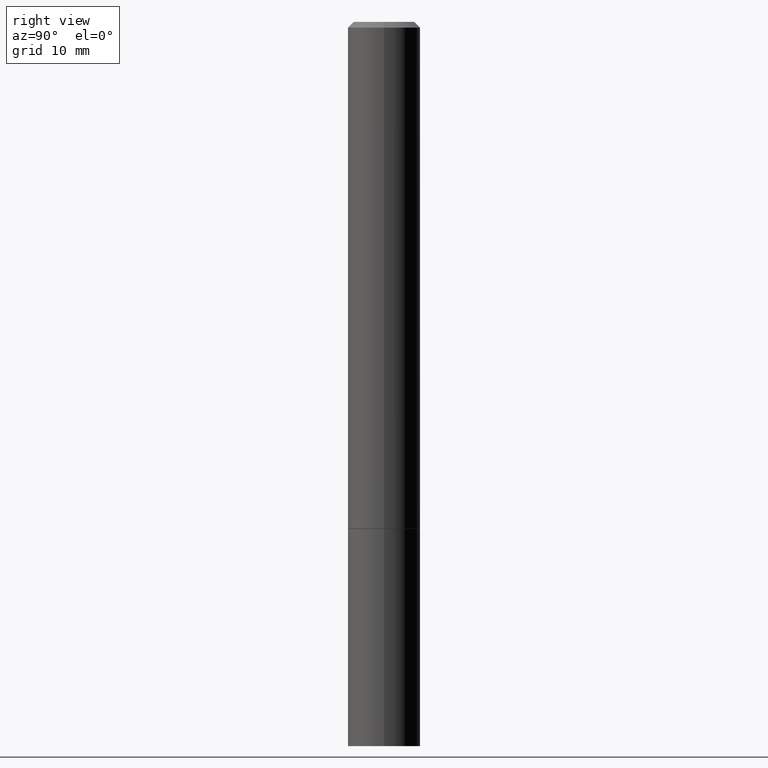
[diagram: clean part render]
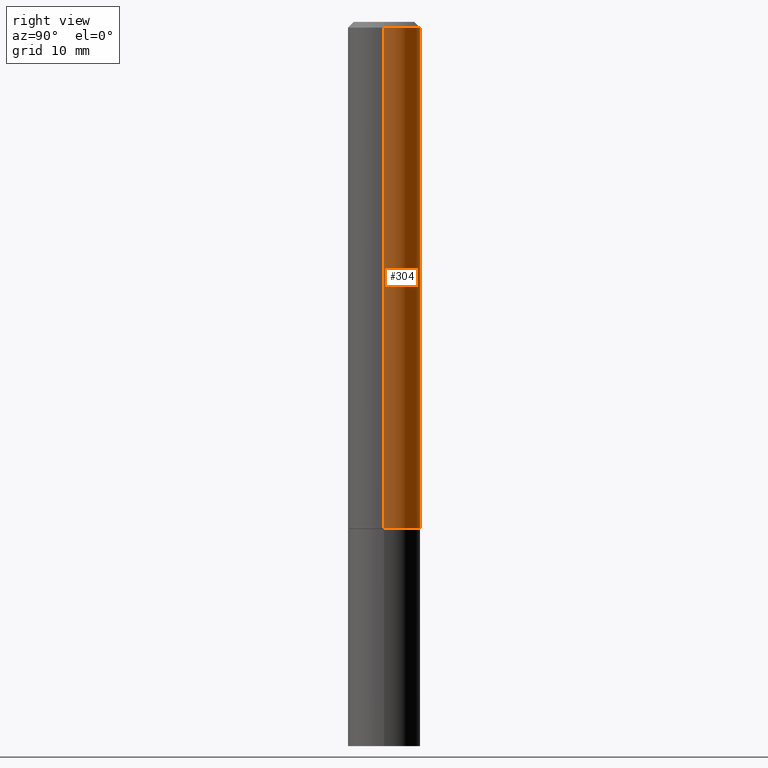
[diagram: same view with one face highlighted and labeled with its STEP entity id]
A machine part, right view. The second image highlights one B-rep face of the part: STEP entity #304.
In plain terms, the highlighted cylindrical surface (edge-blend (fillet) strip) has radius 3.175 mm, axis along (-0, 0, 1).
Its self-contained STEP definition (entity closure, byte-faithful):
#1 = AXIS2_PLACEMENT_3D ( 'NONE', #358, #110, #298 ) ;
#11 = CARTESIAN_POINT ( 'NONE',  ( 0.000000000000000000, 0.000000000000000000, 0.000000000000000000 ) ) ;
#55 = AXIS2_PLACEMENT_3D ( 'NONE', #67, #170, #344 ) ;
#67 = CARTESIAN_POINT ( 'NONE',  ( 4.890937612370281041E-31, -6.982962677686302702E-17, -0.02000000000000003511 ) ) ;
#69 = ORIENTED_EDGE ( 'NONE', *, *, #173, .T. ) ;
#75 = FACE_OUTER_BOUND ( 'NONE', #274, .T. ) ;
#76 = CYLINDRICAL_SURFACE ( 'NONE', #187, 0.1249999999999999029 ) ;
#82 = LINE ( 'NONE', #286, #136 ) ;
#88 = ORIENTED_EDGE ( 'NONE', *, *, #152, .F. ) ;
#90 = ORIENTED_EDGE ( 'NONE', *, *, #261, .T. ) ;
#102 = CARTESIAN_POINT ( 'NONE',  ( 0.1250000000000000000, -6.979471196347445792E-15, -1.749000000000000110 ) ) ;
#110 = DIRECTION ( 'NONE',  ( -2.445468806185136597E-29, 3.491481338843145583E-15, 1.000000000000000000 ) ) ;
#134 = CARTESIAN_POINT ( 'NONE',  ( -0.1249999999999999029, 8.881784197001245421E-16, -6.148668862818627323E-30 ) ) ;
#136 = VECTOR ( 'NONE', #144, 39.37007874015748143 ) ;
#144 = DIRECTION ( 'NONE',  ( -2.445468806185136877E-29, 3.491481338843145188E-15, 1.000000000000000000 ) ) ;
#152 = EDGE_CURVE ( 'NONE', #205, #282, #82, .T. ) ;
#170 = DIRECTION ( 'NONE',  ( -2.445468806185136597E-29, 3.491481338843145583E-15, 1.000000000000000000 ) ) ;
#173 = EDGE_CURVE ( 'NONE', #303, #213, #239, .T. ) ;
#182 = CARTESIAN_POINT ( 'NONE',  ( 0.1249999999999997918, -9.273918764983031658E-16, -0.02000000000000003511 ) ) ;
#187 = AXIS2_PLACEMENT_3D ( 'NONE', #11, #259, #329 ) ;
#198 = DIRECTION ( 'NONE',  ( -2.445468806185136877E-29, 3.491481338843145188E-15, 1.000000000000000000 ) ) ;
#205 = VERTEX_POINT ( 'NONE', #102 ) ;
#213 = VERTEX_POINT ( 'NONE', #230 ) ;
#225 = CIRCLE ( 'NONE', #55, 0.1249999999999997918 ) ;
#230 = CARTESIAN_POINT ( 'NONE',  ( -0.1249999999999997918, 8.030407079339188573E-16, -0.02000000000000003511 ) ) ;
#239 = LINE ( 'NONE', #134, #277 ) ;
#259 = DIRECTION ( 'NONE',  ( -2.445468806185136597E-29, 3.491481338843145583E-15, 1.000000000000000000 ) ) ;
#261 = EDGE_CURVE ( 'NONE', #205, #303, #338, .T. ) ;
#274 = EDGE_LOOP ( 'NONE', ( #90, #69, #360, #88 ) ) ;
#277 = VECTOR ( 'NONE', #198, 39.37007874015748143 ) ;
#282 = VERTEX_POINT ( 'NONE', #182 ) ;
#286 = CARTESIAN_POINT ( 'NONE',  ( 0.1249999999999999029, -8.728703347107826486E-16, 6.095220969744914837E-30 ) ) ;
#288 = EDGE_CURVE ( 'NONE', #282, #213, #225, .T. ) ;
#298 = DIRECTION ( 'NONE',  ( 1.000000000000000000, -6.982962677686270655E-15, 0.000000000000000000 ) ) ;
#303 = VERTEX_POINT ( 'NONE', #322 ) ;
#304 = ADVANCED_FACE ( 'NONE', ( #75 ), #76, .T. ) ;
#322 = CARTESIAN_POINT ( 'NONE',  ( -0.1250000000000000278, -2.200036824506634488E-15, -1.749000000000000110 ) ) ;
#329 = DIRECTION ( 'NONE',  ( 1.000000000000000000, -6.982962677686266711E-15, 4.876176775795935793E-29 ) ) ;
#338 = CIRCLE ( 'NONE', #1, 0.1250000000000000000 ) ;
#344 = DIRECTION ( 'NONE',  ( 1.000000000000000000, -6.982962677686266711E-15, 0.000000000000000000 ) ) ;
#358 = CARTESIAN_POINT ( 'NONE',  ( 4.277124942017804562E-29, -6.106600861636661664E-15, -1.749000000000000110 ) ) ;
#360 = ORIENTED_EDGE ( 'NONE', *, *, #288, .F. ) ;